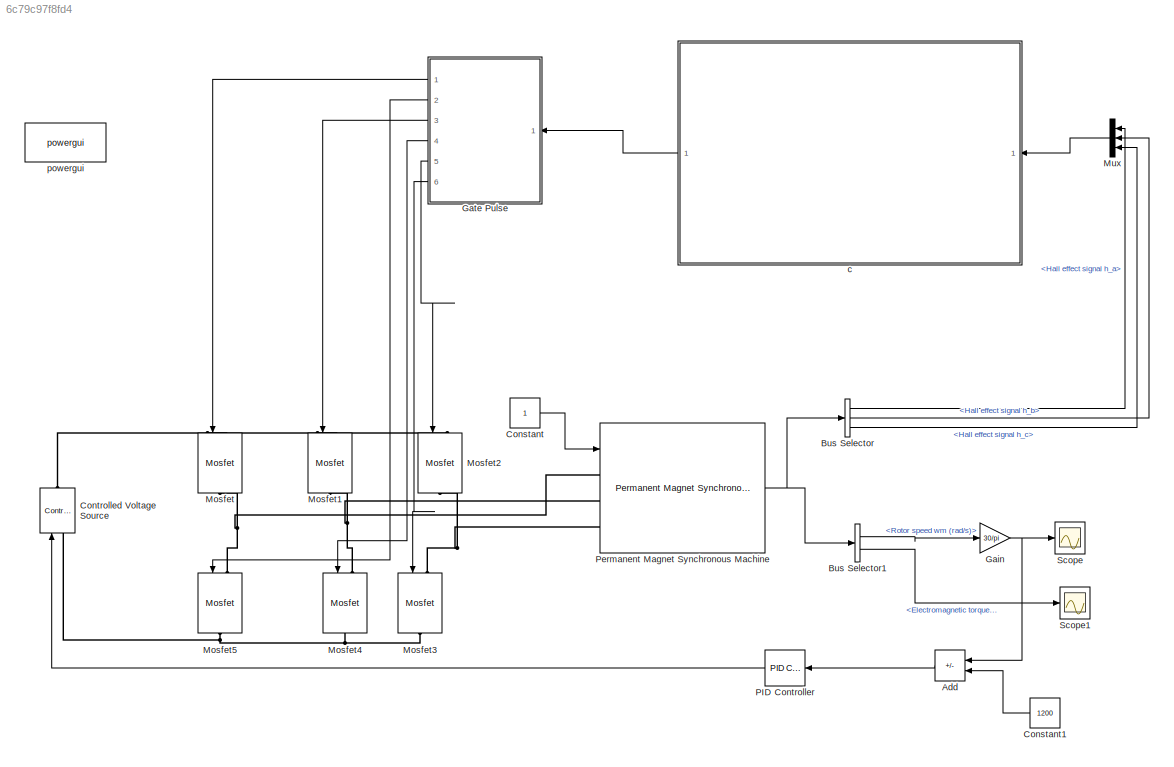
MODEL slx_6c79c97f8fd4
KIND model
CONFIG AbsTol = auto
CONFIG EnableMultiTasking = off
CONFIG FixedStep = auto
CONFIG MaxStep = auto
CONFIG MinStep = auto
CONFIG RelTol = 1e-3
CONFIG SampleTimeConstraint = Unconstrained
CONFIG SolverName = VariableStepAuto
CONFIG StartTime = 0.0
CONFIG StopTime = 1
BLOCK [Sum] Add
  IconShape = rectangular
  Inputs = -+
  NameLocation = top
  Ports = [2, 1]
BLOCK [BusSelector] Bus Selector
  OutputSignals = Hall effect signal h_a,Hall effect signal h_b,Hall effect signal h_c
  Ports = [1, 3]
BLOCK [BusSelector] Bus Selector1
  OutputSignals = Rotor speed wm (rad/s),Electromagnetic torque Te (N*m)
  Ports = [1, 2]
BLOCK [Constant] Constant
BLOCK [Constant] Constant1
  NameLocation = top
  Value = 1200
BLOCK [Reference] Controlled Voltage Source  REF=spsControlledVoltageSourceLib/Controlled Voltage Source
  Ports = [1, 0, 0, 0, 0, 1, 1]
  SourceBlock = spsControlledVoltageSourceLib/Controlled Voltage Source
  SourceProductBaseCode = PS
  SourceType = Controlled Voltage Source
BLOCK [Gain] Gain
  Gain = 30/pi
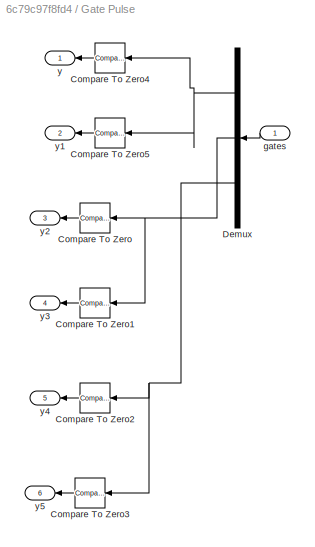
BLOCK [SubSystem] Gate Pulse
  NameLocation = top
  Ports = [1, 6]
  RequestExecContextInheritance = off
BLOCK [Reference] Gate Pulse/Compare To Zero  REF=simulink/Logic and Bit
Operations/Compare
To Zero
  NameLocation = top
  Ports = [1, 1]
  SourceBlock = simulink/Logic and Bit\nOperations/Compare\nTo Zero
  SourceProductBaseCode = SL
  SourceType = Compare To Zero
BLOCK [Reference] Gate Pulse/Compare To Zero1  REF=simulink/Logic and Bit
Operations/Compare
To Zero
  NameLocation = top
  Ports = [1, 1]
  SourceBlock = simulink/Logic and Bit\nOperations/Compare\nTo Zero
  SourceProductBaseCode = SL
  SourceType = Compare To Zero
BLOCK [Reference] Gate Pulse/Compare To Zero2  REF=simulink/Logic and Bit
Operations/Compare
To Zero
  NameLocation = top
  Ports = [1, 1]
  SourceBlock = simulink/Logic and Bit\nOperations/Compare\nTo Zero
  SourceProductBaseCode = SL
  SourceType = Compare To Zero
BLOCK [Reference] Gate Pulse/Compare To Zero3  REF=simulink/Logic and Bit
Operations/Compare
To Zero
  NameLocation = top
  Ports = [1, 1]
  SourceBlock = simulink/Logic and Bit\nOperations/Compare\nTo Zero
  SourceProductBaseCode = SL
  SourceType = Compare To Zero
BLOCK [Reference] Gate Pulse/Compare To Zero4  REF=simulink/Logic and Bit
Operations/Compare
To Zero
  NameLocation = top
  Ports = [1, 1]
  SourceBlock = simulink/Logic and Bit\nOperations/Compare\nTo Zero
  SourceProductBaseCode = SL
  SourceType = Compare To Zero
BLOCK [Reference] Gate Pulse/Compare To Zero5  REF=simulink/Logic and Bit
Operations/Compare
To Zero
  NameLocation = top
  Ports = [1, 1]
  SourceBlock = simulink/Logic and Bit\nOperations/Compare\nTo Zero
  SourceProductBaseCode = SL
  SourceType = Compare To Zero
BLOCK [Demux] Gate Pulse/Demux
  NameLocation = top
  Outputs = 3
  Ports = [1, 3]
BLOCK [Inport] Gate Pulse/gates
BLOCK [Outport] Gate Pulse/y
BLOCK [Outport] Gate Pulse/y1
  Port = 2
BLOCK [Outport] Gate Pulse/y2
  Port = 3
BLOCK [Outport] Gate Pulse/y3
  Port = 4
BLOCK [Outport] Gate Pulse/y4
  Port = 5
BLOCK [Outport] Gate Pulse/y5
  Port = 6
BLOCK [Reference] Mosfet  REF=spsMosfetLib/Mosfet
  NameLocation = left
  Ports = [1, 0, 0, 0, 0, 1, 1]
  SourceBlock = spsMosfetLib/Mosfet
  SourceProductBaseCode = PS
  SourceType = Mosfet
BLOCK [Reference] Mosfet1  REF=spsMosfetLib/Mosfet
  NameLocation = left
  Ports = [1, 0, 0, 0, 0, 1, 1]
  SourceBlock = spsMosfetLib/Mosfet
  SourceProductBaseCode = PS
  SourceType = Mosfet
BLOCK [Reference] Mosfet2  REF=spsMosfetLib/Mosfet
  NameLocation = left
  Ports = [1, 0, 0, 0, 0, 1, 1]
  SourceBlock = spsMosfetLib/Mosfet
  SourceProductBaseCode = PS
  SourceType = Mosfet
BLOCK [Reference] Mosfet3  REF=spsMosfetLib/Mosfet
  NameLocation = left
  Ports = [1, 0, 0, 0, 0, 1, 1]
  SourceBlock = spsMosfetLib/Mosfet
  SourceProductBaseCode = PS
  SourceType = Mosfet
BLOCK [Reference] Mosfet4  REF=spsMosfetLib/Mosfet
  NameLocation = left
  Ports = [1, 0, 0, 0, 0, 1, 1]
  SourceBlock = spsMosfetLib/Mosfet
  SourceProductBaseCode = PS
  SourceType = Mosfet
BLOCK [Reference] Mosfet5  REF=spsMosfetLib/Mosfet
  NameLocation = left
  Ports = [1, 0, 0, 0, 0, 1, 1]
  SourceBlock = spsMosfetLib/Mosfet
  SourceProductBaseCode = PS
  SourceType = Mosfet
BLOCK [Mux] Mux
  DisplayOption = bar
  Inputs = 3
  NameLocation = top
  Ports = [3, 1]
BLOCK [Reference] PID Controller  REF=slpidlib/PID Controller
  NameLocation = top
  Ports = [1, 1]
  SourceBlock = slpidlib/PID Controller
  SourceProductBaseCode = SL
  SourceType = PID 1dof
BLOCK [Reference] Permanent Magnet Synchronous Machine  REF=spsPermanentMagnetSynchronousMachineLib/Permanent Magnet
Synchronous Machine
  Ports = [1, 1, 0, 0, 0, 3]
  SourceBlock = spsPermanentMagnetSynchronousMachineLib/Permanent Magnet\nSynchronous Machine
  SourceProductBaseCode = PS
  SourceType = Permanent Magnet Synchronous Machine
BLOCK [Scope] Scope
  Floating = off
  NumInputPorts = 1
  Ports = [1]
  ScopeSpecificationString = Simulink.scopes.TimeScopeBlockCfg('CurrentConfiguration', extmgr.ConfigurationSet(extmgr.Configuration('Core','General UI',true),extmgr.Configuration('Core','Source UI',true),extmgr.Configuration('Sources','WiredSimulink',true),extmgr.Configuration('Visuals','Time Domain',true,'SerializedDisplays',{struct('MinYLimReal','248.85268','MaxYLimReal','2363.36983','YLabelReal','','MinYLimMag','248.85268'...<+1390ch>
BLOCK [Scope] Scope1
  Floating = off
  NumInputPorts = 1
  Ports = [1]
  ScopeSpecificationString = Simulink.scopes.TimeScopeBlockCfg('CurrentConfiguration', extmgr.ConfigurationSet(extmgr.Configuration('Core','General UI',true),extmgr.Configuration('Core','Source UI',true),extmgr.Configuration('Sources','WiredSimulink',true,'DataLoggingVariableName','ScopeData1'),extmgr.Configuration('Visuals','Time Domain',true),extmgr.Configuration('Tools','Plot Navigation',true),extmgr.Configuration('Tools',...<+40ch>
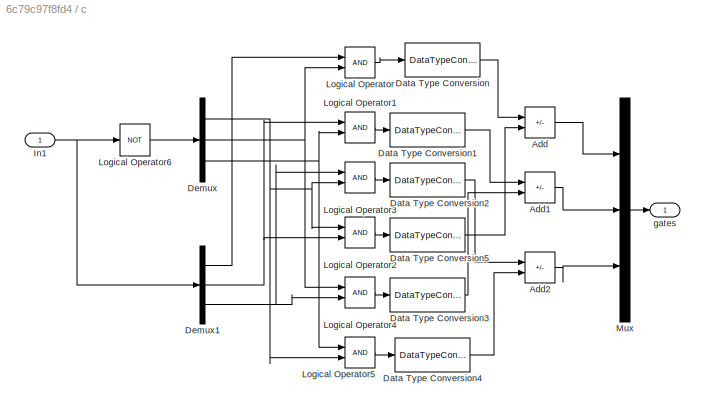
BLOCK [SubSystem] c
  NameLocation = top
  Ports = [1, 1]
  RequestExecContextInheritance = off
BLOCK [Sum] c/Add
  IconShape = rectangular
  Inputs = +-
  Ports = [2, 1]
BLOCK [Sum] c/Add1
  IconShape = rectangular
  Inputs = +-
  Ports = [2, 1]
BLOCK [Sum] c/Add2
  IconShape = rectangular
  Inputs = +-
  Ports = [2, 1]
BLOCK [DataTypeConversion] c/Data Type Conversion
  RndMeth = Floor
  SaturateOnIntegerOverflow = off
BLOCK [DataTypeConversion] c/Data Type Conversion1
  RndMeth = Floor
  SaturateOnIntegerOverflow = off
BLOCK [DataTypeConversion] c/Data Type Conversion2
  RndMeth = Floor
  SaturateOnIntegerOverflow = off
BLOCK [DataTypeConversion] c/Data Type Conversion3
  RndMeth = Floor
  SaturateOnIntegerOverflow = off
BLOCK [DataTypeConversion] c/Data Type Conversion4
  RndMeth = Floor
  SaturateOnIntegerOverflow = off
BLOCK [DataTypeConversion] c/Data Type Conversion5
  RndMeth = Floor
  SaturateOnIntegerOverflow = off
BLOCK [Demux] c/Demux
  Outputs = 3
  Ports = [1, 3]
BLOCK [Demux] c/Demux1
  Outputs = 3
  Ports = [1, 3]
BLOCK [Inport] c/In1
BLOCK [Logic] c/Logical Operator
  AllPortsSameDT = off
  OutDataTypeStr = boolean
  Ports = [2, 1]
BLOCK [Logic] c/Logical Operator1
  AllPortsSameDT = off
  OutDataTypeStr = boolean
  Ports = [2, 1]
BLOCK [Logic] c/Logical Operator2
  AllPortsSameDT = off
  OutDataTypeStr = boolean
  Ports = [2, 1]
BLOCK [Logic] c/Logical Operator3
  AllPortsSameDT = off
  OutDataTypeStr = boolean
  Ports = [2, 1]
BLOCK [Logic] c/Logical Operator4
  AllPortsSameDT = off
  OutDataTypeStr = boolean
  Ports = [2, 1]
BLOCK [Logic] c/Logical Operator5
  AllPortsSameDT = off
  OutDataTypeStr = boolean
  Ports = [2, 1]
BLOCK [Logic] c/Logical Operator6
  AllPortsSameDT = off
  Operator = NOT
  OutDataTypeStr = boolean
  Ports = [1, 1]
BLOCK [Mux] c/Mux
  DisplayOption = bar
  Inputs = 3
  Ports = [3, 1]
BLOCK [Outport] c/gates
BLOCK [Reference] powergui  REF=spspowerguiLib/powergui
  Ports = []
  Priority = 1
  SourceBlock = spspowerguiLib/powergui
  SourceProductBaseCode = PS
  SourceType = PSB option menu block
LINE Add:1 -> PID Controller:1
LINE Bus Selector1:1 -> Gain:1
LINE Bus Selector1:2 -> Scope1:1
LINE Bus Selector:1 -> Mux:1
LINE Bus Selector:2 -> Mux:2
LINE Bus Selector:3 -> Mux:3
LINE Constant1:1 -> Add:2
LINE Constant:1 -> Permanent Magnet Synchronous Machine:1
NET Gain:1 -> Add:1, Scope:1
LINE Gate Pulse/Compare To Zero1:1 -> Gate Pulse/y3:1
LINE Gate Pulse/Compare To Zero2:1 -> Gate Pulse/y4:1
LINE Gate Pulse/Compare To Zero3:1 -> Gate Pulse/y5:1
LINE Gate Pulse/Compare To Zero4:1 -> Gate Pulse/y:1
LINE Gate Pulse/Compare To Zero5:1 -> Gate Pulse/y1:1
LINE Gate Pulse/Compare To Zero:1 -> Gate Pulse/y2:1
NET Gate Pulse/Demux:1 -> Gate Pulse/Compare To Zero4:1, Gate Pulse/Compare To Zero5:1
NET Gate Pulse/Demux:2 -> Gate Pulse/Compare To Zero1:1, Gate Pulse/Compare To Zero:1
NET Gate Pulse/Demux:3 -> Gate Pulse/Compare To Zero2:1, Gate Pulse/Compare To Zero3:1
LINE Gate Pulse/gates:1 -> Gate Pulse/Demux:1
LINE Gate Pulse:1 -> Mosfet:1
LINE Gate Pulse:2 -> Mosfet5:1
LINE Gate Pulse:3 -> Mosfet1:1
LINE Gate Pulse:4 -> Mosfet4:1
LINE Gate Pulse:5 -> Mosfet2:1
LINE Gate Pulse:6 -> Mosfet3:1
LINE Mux:1 -> c:1
LINE PID Controller:1 -> Controlled Voltage Source:1
NET Permanent Magnet Synchronous Machine:1 -> Bus Selector1:1, Bus Selector:1
LINE c/Add1:1 -> c/Mux:2
LINE c/Add2:1 -> c/Mux:3
LINE c/Add:1 -> c/Mux:1
LINE c/Data Type Conversion1:1 -> c/Add1:1
LINE c/Data Type Conversion2:1 -> c/Add2:1
LINE c/Data Type Conversion3:1 -> c/Add1:2
LINE c/Data Type Conversion4:1 -> c/Add2:2
LINE c/Data Type Conversion5:1 -> c/Add:2
LINE c/Data Type Conversion:1 -> c/Add:1
LINE c/Demux1:1 -> c/Logical Operator:1
NET c/Demux1:2 -> c/Logical Operator1:1, c/Logical Operator2:2
NET c/Demux1:3 -> c/Logical Operator3:1, c/Logical Operator4:2
NET c/Demux:1 -> c/Logical Operator2:1, c/Logical Operator3:2, c/Logical Operator5:2
NET c/Demux:2 -> c/Logical Operator4:1, c/Logical Operator:2
NET c/Demux:3 -> c/Logical Operator1:2, c/Logical Operator5:1
NET c/In1:1 -> c/Demux1:1, c/Logical Operator6:1
LINE c/Logical Operator1:1 -> c/Data Type Conversion1:1
LINE c/Logical Operator2:1 -> c/Data Type Conversion5:1
LINE c/Logical Operator3:1 -> c/Data Type Conversion2:1
LINE c/Logical Operator4:1 -> c/Data Type Conversion3:1
LINE c/Logical Operator5:1 -> c/Data Type Conversion4:1
LINE c/Logical Operator6:1 -> c/Demux:1
LINE c/Logical Operator:1 -> c/Data Type Conversion:1
LINE c/Mux:1 -> c/gates:1
LINE c:1 -> Gate Pulse:1
PNET net1: Controlled Voltage Source:LConn1 -- Mosfet3:RConn1 -- Mosfet4:RConn1 -- Mosfet5:RConn1
PNET net2: Controlled Voltage Source:RConn1 -- Mosfet1:LConn1 -- Mosfet2:LConn1 -- Mosfet:LConn1
PNET net3: Mosfet1:RConn1 -- Mosfet4:LConn1 -- Permanent Magnet Synchronous Machine:LConn2
PNET net4: Mosfet2:RConn1 -- Mosfet3:LConn1 -- Permanent Magnet Synchronous Machine:LConn3
PNET net5: Mosfet5:LConn1 -- Mosfet:RConn1 -- Permanent Magnet Synchronous Machine:LConn1
note: NET lines group one-source signal fan-out (src -> all destinations, sorted); 1:1 wires keep LINE; PNET lines group multi-terminal physical nets as a canonical sorted terminal list (undirected conserving connections); 2-terminal nets keep the pairwise PLINE form
